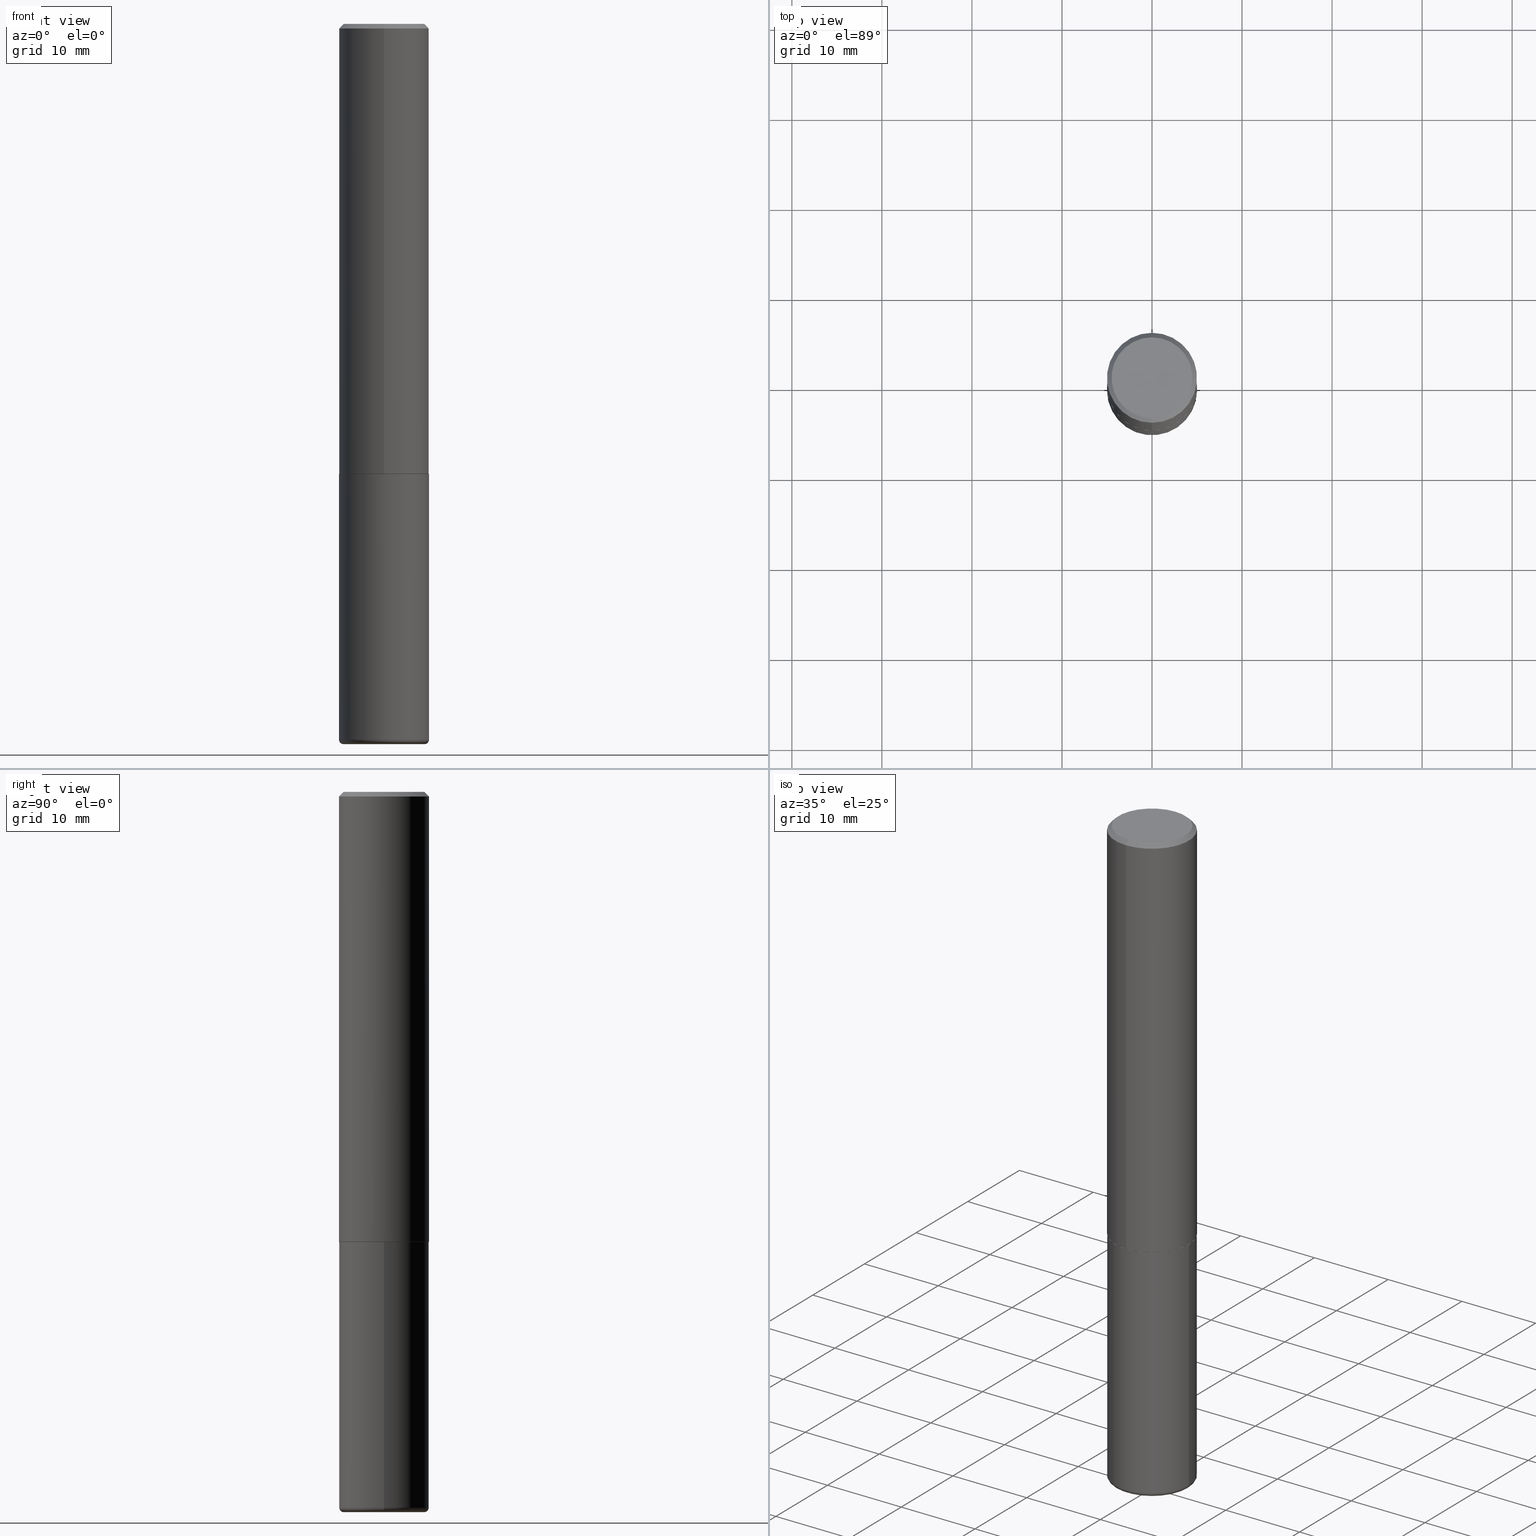
[diagram: canonical four-view strip — front | top / right | iso, engineering-drawing reading convention]
A machine part, canonical four-view strip (front | top / right | iso — engineering-drawing reading convention). The complete STEP part file that produces these views, byte-faithful:
ISO-10303-21;
HEADER;
FILE_DESCRIPTION (( 'STEP AP203' ),
    '1' );
FILE_NAME ('74415.STEP',
    '2024-03-06T15:12:24',
    ( '' ),
    ( '' ),
    'SwSTEP 2.0',
    'SolidWorks 2023',
    '' );
FILE_SCHEMA (( 'CONFIG_CONTROL_DESIGN' ));
ENDSEC;

DATA;
#1 = DIRECTION ( 'NONE',  ( 4.937700262164538576E-15, 0.7071067811865437980, -0.7071067811865511255 ) ) ;
#2 = DIRECTION ( 'NONE',  ( 1.000000000000000000, -6.982962677686266711E-15, 4.876176775795935793E-29 ) ) ;
#3 = DIRECTION ( 'NONE',  ( -6.982962677686265922E-15, -1.000000000000000000, 3.491767699944464940E-15 ) ) ;
#4 = PERSON_AND_ORGANIZATION ( #85, #277 ) ;
#5 = ORIENTED_EDGE ( 'NONE', *, *, #45, .F. ) ;
#6 = DIRECTION ( 'NONE',  ( -6.982962677686265922E-15, -1.000000000000000000, 4.184602492209747448E-15 ) ) ;
#7 = CC_DESIGN_PERSON_AND_ORGANIZATION_ASSIGNMENT ( #216, #124, ( #50 ) ) ;
#8 = DIRECTION ( 'NONE',  ( -6.982962677686266711E-15, -1.000000000000000000, 3.491481338843145583E-15 ) ) ;
#9 = VECTOR ( 'NONE', #130, 39.37007874015748143 ) ;
#10 = DATE_AND_TIME ( #167, #17 ) ;
#11 = DIRECTION ( 'NONE',  ( 6.982962677686265133E-15, 1.000000000000000000, -3.491137977679279029E-15 ) ) ;
#12 = EDGE_CURVE ( 'NONE', #100, #136, #118, .T. ) ;
#13 = CARTESIAN_POINT ( 'NONE',  ( 0.000000000000000000, 0.000000000000000000, 0.000000000000000000 ) ) ;
#14 =( CONVERSION_BASED_UNIT ( 'INCH', #212 ) LENGTH_UNIT ( ) NAMED_UNIT ( #214 ) );
#15 = MANIFOLD_SOLID_BREP ( 'Body-Move/Copy2[1]', #387 ) ;
#16 = VECTOR ( 'NONE', #379, 39.37007874015748854 ) ;
#17 = LOCAL_TIME ( 10, 12, 24.00000000000000000, #324 ) ;
#18 = CC_DESIGN_PERSON_AND_ORGANIZATION_ASSIGNMENT ( #149, #364, ( #315 ) ) ;
#19 = APPLICATION_CONTEXT ( 'configuration controlled 3d designs of mechanical parts and assemblies' ) ;
#20 = CALENDAR_DATE ( 2024, 6, 3 ) ;
#21 = VECTOR ( 'NONE', #109, 39.37007874015748143 ) ;
#22 = ORIENTED_EDGE ( 'NONE', *, *, #222, .T. ) ;
#23 = EDGE_LOOP ( 'NONE', ( #84, #398, #314, #44 ) ) ;
#24 = CIRCLE ( 'NONE', #32, 0.1771500000000000019 ) ;
#25 = VECTOR ( 'NONE', #1, 39.37007874015748854 ) ;
#26 = DIRECTION ( 'NONE',  ( -2.445468806185136597E-29, 3.491481338843145583E-15, 1.000000000000000000 ) ) ;
#27 = EDGE_CURVE ( 'NONE', #190, #381, #357, .T. ) ;
#28 = DIRECTION ( 'NONE',  ( 2.438088387897960049E-29, -3.491481338843145188E-15, -1.000000000000000000 ) ) ;
#29 = UNCERTAINTY_MEASURE_WITH_UNIT (LENGTH_MEASURE( 1.000000000000000082E-05 ), #14, 'distance_accuracy_value', 'NONE');
#30 = CARTESIAN_POINT ( 'NONE',  ( 0.000000000000000000, 0.000000000000000000, 0.000000000000000000 ) ) ;
#31 = CC_DESIGN_PERSON_AND_ORGANIZATION_ASSIGNMENT ( #358, #273, ( #52 ) ) ;
#32 = AXIS2_PLACEMENT_3D ( 'NONE', #331, #46, #268 ) ;
#33 = DIRECTION ( 'NONE',  ( -2.445268841296851437E-29, 3.491767699944464545E-15, 1.000000000000000000 ) ) ;
#34 = CIRCLE ( 'NONE', #288, 0.1968500000000000250 ) ;
#35 = LOCAL_TIME ( 10, 12, 24.00000000000000000, #95 ) ;
#36 = VERTEX_POINT ( 'NONE', #138 ) ;
#37 = PERSON_AND_ORGANIZATION ( #85, #277 ) ;
#38 = FACE_OUTER_BOUND ( 'NONE', #128, .T. ) ;
#39 = DIRECTION ( 'NONE',  ( -2.445268841296851437E-29, 3.491767699944464940E-15, 1.000000000000000000 ) ) ;
#40 =( NAMED_UNIT ( * ) SI_UNIT ( $, .STERADIAN. ) SOLID_ANGLE_UNIT ( ) );
#41 = ORIENTED_EDGE ( 'NONE', *, *, #184, .F. ) ;
#42 = DIRECTION ( 'NONE',  ( -2.445268841296850876E-29, 3.491767699944464940E-15, 1.000000000000000000 ) ) ;
#43 = FACE_OUTER_BOUND ( 'NONE', #23, .T. ) ;
#44 = ORIENTED_EDGE ( 'NONE', *, *, #93, .F. ) ;
#45 = EDGE_CURVE ( 'NONE', #157, #170, #81, .T. ) ;
#46 = DIRECTION ( 'NONE',  ( -2.445468806185136597E-29, 3.491481338843145583E-15, 1.000000000000000000 ) ) ;
#47 = CIRCLE ( 'NONE', #319, 0.1968500000000002470 ) ;
#48 = ORIENTED_EDGE ( 'NONE', *, *, #199, .T. ) ;
#49 =( LENGTH_UNIT ( ) NAMED_UNIT ( * ) SI_UNIT ( $, .METRE. ) );
#50 = SECURITY_CLASSIFICATION ( '', '', #79 ) ;
#51 = APPROVAL_DATE_TIME ( #181, #308 ) ;
#52 = PRODUCT ( '74415', '74415', '', ( #67 ) ) ;
#53 = DIRECTION ( 'NONE',  ( 1.000000000000000000, -6.982962677686271444E-15, 4.883557194083114022E-29 ) ) ;
#54 = DIRECTION ( 'NONE',  ( -2.445468806185136597E-29, 3.491481338843145583E-15, 1.000000000000000000 ) ) ;
#55 = CARTESIAN_POINT ( 'NONE',  ( 1.398703375343782440E-15, 0.1968499999999933914, -1.967500000000000471 ) ) ;
#56 = VERTEX_POINT ( 'NONE', #298 ) ;
#57 = DIRECTION ( 'NONE',  ( -6.982962677686265922E-15, -1.000000000000000000, 4.184602492209747448E-15 ) ) ;
#58 = AXIS2_PLACEMENT_3D ( 'NONE', #242, #401, #2 ) ;
#59 = ORIENTED_EDGE ( 'NONE', *, *, #65, .T. ) ;
#60 = DIRECTION ( 'NONE',  ( -2.445268841296851437E-29, 3.491767699944464545E-15, 1.000000000000000000 ) ) ;
#61 = CIRCLE ( 'NONE', #218, 0.1968500000000002470 ) ;
#62 = CARTESIAN_POINT ( 'NONE',  ( 1.374596203102542200E-15, 0.1968499999999999694, -0.02000000000000072900 ) ) ;
#63 = FACE_OUTER_BOUND ( 'NONE', #259, .T. ) ;
#64 = FACE_OUTER_BOUND ( 'NONE', #359, .T. ) ;
#65 = EDGE_CURVE ( 'NONE', #352, #103, #24, .T. ) ;
#66 = LINE ( 'NONE', #106, #372 ) ;
#67 = MECHANICAL_CONTEXT ( 'NONE', #243, 'mechanical' ) ;
#68 = ORIENTED_EDGE ( 'NONE', *, *, #184, .T. ) ;
#69 = AXIS2_PLACEMENT_3D ( 'NONE', #285, #26, #287 ) ;
#70 = LOCAL_TIME ( 10, 12, 24.00000000000000000, #371 ) ;
#71 = DIRECTION ( 'NONE',  ( 1.000000000000000000, -6.982962677686266711E-15, 4.876176775795935793E-29 ) ) ;
#72 = CC_DESIGN_APPROVAL ( #308, ( #50 ) ) ;
#73 = DIRECTION ( 'NONE',  ( -2.445468806185136597E-29, 3.491481338843145583E-15, 1.000000000000000000 ) ) ;
#74 = DIRECTION ( 'NONE',  ( 7.105427357601001859E-15, 1.000000000000000000, -3.491481338843145583E-15 ) ) ;
#75 = DIRECTION ( 'NONE',  ( 1.000000000000000000, -6.982962677686267499E-15, 0.000000000000000000 ) ) ;
#76 = FACE_OUTER_BOUND ( 'NONE', #280, .T. ) ;
#77 = CALENDAR_DATE ( 2024, 6, 3 ) ;
#78 = ORIENTED_EDGE ( 'NONE', *, *, #132, .T. ) ;
#79 = SECURITY_CLASSIFICATION_LEVEL ( 'unclassified' ) ;
#80 = DESIGN_CONTEXT ( 'detailed design', #19, 'design' ) ;
#81 = CIRCLE ( 'NONE', #134, 0.1768499999999998407 ) ;
#82 = CARTESIAN_POINT ( 'NONE',  ( -1.367613240424807079E-15, -0.1958500000000068797, -1.968499999999999028 ) ) ;
#83 = DIRECTION ( 'NONE',  ( -6.982962677686265922E-15, -1.000000000000000000, 3.491767699944464545E-15 ) ) ;
#84 = ORIENTED_EDGE ( 'NONE', *, *, #262, .T. ) ;
#85 = PERSON ( 'UNSPECIFIED', 'UNSPECIFIED', 'UNSPECIFIED', ('UNSPECIFIED'), ('UNSPECIFIED'), ('UNSPECIFIED') ) ;
#86 = ADVANCED_FACE ( 'NONE', ( #76 ), #370, .T. ) ;
#87 = FACE_OUTER_BOUND ( 'NONE', #228, .T. ) ;
#88 = DIRECTION ( 'NONE',  ( 6.982962677686265133E-15, 1.000000000000000000, -3.491137977679279029E-15 ) ) ;
#89 = AXIS2_PLACEMENT_3D ( 'NONE', #30, #137, #71 ) ;
#90 = ADVANCED_FACE ( 'NONE', ( #64 ), #223, .T. ) ;
#91 = CARTESIAN_POINT ( 'NONE',  ( -0.1771500000000000019, -9.633663617761380556E-15, -3.149600000000000399 ) ) ;
#92 = APPROVAL_STATUS ( 'not_yet_approved' ) ;
#93 = EDGE_CURVE ( 'NONE', #36, #310, #239, .T. ) ;
#94 = CARTESIAN_POINT ( 'NONE',  ( -5.428821863719041386E-45, 7.752188435212310874E-31, 2.220132924459896583E-16 ) ) ;
#95 = COORDINATED_UNIVERSAL_TIME_OFFSET ( 5, 0, .BEHIND. ) ;
#96 = ORIENTED_EDGE ( 'NONE', *, *, #189, .T. ) ;
#97 = FACE_OUTER_BOUND ( 'NONE', #274, .T. ) ;
#98 = AXIS2_PLACEMENT_3D ( 'NONE', #13, #403, #210 ) ;
#99 = DIRECTION ( 'NONE',  ( -2.445268841296851437E-29, 3.491767699944464545E-15, 1.000000000000000000 ) ) ;
#100 = VERTEX_POINT ( 'NONE', #82 ) ;
#101 = VERTEX_POINT ( 'NONE', #121 ) ;
#102 = PLANE ( 'NONE',  #155 ) ;
#103 = VERTEX_POINT ( 'NONE', #91 ) ;
#104 = DIRECTION ( 'NONE',  ( -6.982962677686265922E-15, -1.000000000000000000, 4.184602492209747448E-15 ) ) ;
#105 = DIRECTION ( 'NONE',  ( 1.000000000000000000, -6.982962677686267499E-15, 0.000000000000000000 ) ) ;
#106 = CARTESIAN_POINT ( 'NONE',  ( 1.391597947986204111E-15, 0.1958499999999931407, -1.968500000000000583 ) ) ;
#107 = CARTESIAN_POINT ( 'NONE',  ( 4.813905344975440714E-29, -6.872981015512730918E-15, -1.968499999999999694 ) ) ;
#108 = LINE ( 'NONE', #388, #253 ) ;
#109 = DIRECTION ( 'NONE',  ( -2.445468806185136877E-29, 3.491481338843145188E-15, 1.000000000000000000 ) ) ;
#110 = ORIENTED_EDGE ( 'NONE', *, *, #414, .T. ) ;
#111 = FACE_OUTER_BOUND ( 'NONE', #306, .T. ) ;
#112 = CIRCLE ( 'NONE', #193, 0.1968499999999999694 ) ;
#113 = AXIS2_PLACEMENT_3D ( 'NONE', #115, #374, #294 ) ;
#114 = APPROVAL_DATE_TIME ( #334, #250 ) ;
#115 = CARTESIAN_POINT ( 'NONE',  ( 1.234936949548815012E-15, 0.1768499999999998407, -5.065124715121833152E-16 ) ) ;
#116 = PERSON_AND_ORGANIZATION_ROLE ( 'design_supplier' ) ;
#117 = VERTEX_POINT ( 'NONE', #55 ) ;
#118 = CIRCLE ( 'NONE', #211, 0.1958499999999999963 ) ;
#119 = EDGE_CURVE ( 'NONE', #170, #310, #318, .T. ) ;
#120 = AXIS2_PLACEMENT_3D ( 'NONE', #290, #28, #234 ) ;
#121 = CARTESIAN_POINT ( 'NONE',  ( 1.374596203102542200E-15, 0.1968499999999999694, -0.02000000000000072900 ) ) ;
#122 = AXIS2_PLACEMENT_3D ( 'NONE', #355, #60, #320 ) ;
#123 = EDGE_CURVE ( 'NONE', #190, #56, #340, .T. ) ;
#124 = PERSON_AND_ORGANIZATION_ROLE ( 'classification_officer' ) ;
#125 = CIRCLE ( 'NONE', #361, 0.1768499999999998407 ) ;
#126 = CIRCLE ( 'NONE', #122, 0.1968500000000000527 ) ;
#127 = DIRECTION ( 'NONE',  ( -2.445468806185136597E-29, 3.491481338843145583E-15, 1.000000000000000000 ) ) ;
#128 = EDGE_LOOP ( 'NONE', ( #283, #154, #68, #373 ) ) ;
#129 = DIRECTION ( 'NONE',  ( -2.445268841296851437E-29, 3.491767699944464545E-15, 1.000000000000000000 ) ) ;
#130 = DIRECTION ( 'NONE',  ( -4.937700262164969294E-15, -0.7071067811866054154, 0.7071067811864896191 ) ) ;
#131 = DIRECTION ( 'NONE',  ( -2.445268841296851437E-29, 3.491767699944464545E-15, 1.000000000000000000 ) ) ;
#132 = EDGE_CURVE ( 'NONE', #170, #157, #125, .T. ) ;
#133 = DIRECTION ( 'NONE',  ( -6.982962677686265133E-15, -1.000000000000000000, 3.491137977679279029E-15 ) ) ;
#134 = AXIS2_PLACEMENT_3D ( 'NONE', #166, #363, #3 ) ;
#135 = AXIS2_PLACEMENT_3D ( 'NONE', #165, #300, #6 ) ;
#136 = VERTEX_POINT ( 'NONE', #384 ) ;
#137 = DIRECTION ( 'NONE',  ( -2.445468806185136597E-29, 3.491481338843145583E-15, 1.000000000000000000 ) ) ;
#138 = CARTESIAN_POINT ( 'NONE',  ( -1.374596203102495065E-15, -0.1968500000000071026, -1.967499999999998916 ) ) ;
#139 = ORIENTED_EDGE ( 'NONE', *, *, #27, .T. ) ;
#140 = CARTESIAN_POINT ( 'NONE',  ( 0.000000000000000000, 0.000000000000000000, 0.000000000000000000 ) ) ;
#141 = APPLICATION_PROTOCOL_DEFINITION ( 'international standard', 'config_control_design', 1994, #19 ) ;
#142 = ORIENTED_EDGE ( 'NONE', *, *, #396, .F. ) ;
#143 = AXIS2_PLACEMENT_3D ( 'NONE', #251, #254, #57 ) ;
#144 = DIRECTION ( 'NONE',  ( 1.000000000000000000, -6.982962677686266711E-15, 0.000000000000000000 ) ) ;
#145 = PERSON_AND_ORGANIZATION ( #85, #277 ) ;
#146 = CARTESIAN_POINT ( 'NONE',  ( 0.000000000000000000, 0.000000000000000000, 0.000000000000000000 ) ) ;
#147 = ORIENTED_EDGE ( 'NONE', *, *, #265, .F. ) ;
#148 = EDGE_CURVE ( 'NONE', #56, #190, #112, .T. ) ;
#149 = PERSON_AND_ORGANIZATION ( #85, #277 ) ;
#150 = VECTOR ( 'NONE', #39, 39.37007874015748143 ) ;
#151 = APPROVAL_PERSON_ORGANIZATION ( #37, #250, #399 ) ;
#152 = ADVANCED_FACE ( 'NONE', ( #187 ), #102, .F. ) ;
#153 = MANIFOLD_SOLID_BREP ( 'Body-Move/Copy2[2]', #179 ) ;
#154 = ORIENTED_EDGE ( 'NONE', *, *, #123, .T. ) ;
#155 = AXIS2_PLACEMENT_3D ( 'NONE', #227, #42, #329 ) ;
#156 = AXIS2_PLACEMENT_3D ( 'NONE', #140, #33, #417 ) ;
#157 = VERTEX_POINT ( 'NONE', #416 ) ;
#158 = DIRECTION ( 'NONE',  ( -6.982962677686265922E-15, -1.000000000000000000, 4.163344669033670112E-15 ) ) ;
#159 = ADVANCED_FACE ( 'NONE', ( #169 ), #376, .T. ) ;
#160 = DIRECTION ( 'NONE',  ( 2.438088387897960049E-29, -3.491481338843145188E-15, -1.000000000000000000 ) ) ;
#161 = DIRECTION ( 'NONE',  ( 5.024295867788490741E-15, 0.7071067811866103003, 0.7071067811864847341 ) ) ;
#162 = FACE_OUTER_BOUND ( 'NONE', #378, .T. ) ;
#163 = AXIS2_PLACEMENT_3D ( 'NONE', #219, #54, #53 ) ;
#164 = CC_DESIGN_SECURITY_CLASSIFICATION ( #50, ( #380 ) ) ;
#165 = CARTESIAN_POINT ( 'NONE',  ( 4.813511714092851266E-29, -6.873544717340677315E-15, -1.968499999999999694 ) ) ;
#166 = CARTESIAN_POINT ( 'NONE',  ( -5.428821863719041386E-45, 7.752188435212310874E-31, 2.220132924459896583E-16 ) ) ;
#167 = CALENDAR_DATE ( 2024, 6, 3 ) ;
#168 = ORIENTED_EDGE ( 'NONE', *, *, #199, .F. ) ;
#169 = FACE_OUTER_BOUND ( 'NONE', #247, .T. ) ;
#170 = VERTEX_POINT ( 'NONE', #171 ) ;
#171 = CARTESIAN_POINT ( 'NONE',  ( -1.281884050883609900E-15, -0.1768499999999998407, 8.395324101811677409E-16 ) ) ;
#172 =( NAMED_UNIT ( * ) PLANE_ANGLE_UNIT ( ) SI_UNIT ( $, .RADIAN. ) );
#173 = DIRECTION ( 'NONE',  ( 2.445268841296851437E-29, -3.491767699944464545E-15, -1.000000000000000000 ) ) ;
#174 = ORIENTED_EDGE ( 'NONE', *, *, #377, .F. ) ;
#175 = CYLINDRICAL_SURFACE ( 'NONE', #225, 0.1968500000000001360 ) ;
#176 = ORIENTED_EDGE ( 'NONE', *, *, #375, .F. ) ;
#177 = CALENDAR_DATE ( 2024, 6, 3 ) ;
#178 = CARTESIAN_POINT ( 'NONE',  ( 4.890537682593712927E-31, -6.983535399888942699E-17, -0.02000000000000004205 ) ) ;
#179 = CLOSED_SHELL ( 'NONE', ( #159, #415, #302, #86, #246, #282, #152, #236 ) ) ;
#180 = AXIS2_PLACEMENT_3D ( 'NONE', #382, #129, #104 ) ;
#181 = DATE_AND_TIME ( #177, #35 ) ;
#182 = CARTESIAN_POINT ( 'NONE',  ( 0.1968500000000000250, -8.247577218615273316E-15, -1.968499999999999694 ) ) ;
#183 = EDGE_CURVE ( 'NONE', #117, #101, #301, .T. ) ;
#184 = EDGE_CURVE ( 'NONE', #56, #325, #108, .T. ) ;
#185 = APPROVAL_ROLE ( '' ) ;
#186 = DIRECTION ( 'NONE',  ( -2.445268841296851437E-29, 3.491767699944464545E-15, 1.000000000000000000 ) ) ;
#187 = FACE_OUTER_BOUND ( 'NONE', #391, .T. ) ;
#188 =( GEOMETRIC_REPRESENTATION_CONTEXT ( 3 ) GLOBAL_UNCERTAINTY_ASSIGNED_CONTEXT ( ( #29 ) ) GLOBAL_UNIT_ASSIGNED_CONTEXT ( ( #14, #172, #40 ) ) REPRESENTATION_CONTEXT ( 'NONE', 'WORKASPACE' ) );
#189 = EDGE_CURVE ( 'NONE', #136, #117, #66, .T. ) ;
#190 = VERTEX_POINT ( 'NONE', #233 ) ;
#191 = DIRECTION ( 'NONE',  ( 1.000000000000000000, -6.982962677686269866E-15, 0.000000000000000000 ) ) ;
#192 = ORIENTED_EDGE ( 'NONE', *, *, #119, .T. ) ;
#193 = AXIS2_PLACEMENT_3D ( 'NONE', #351, #221, #191 ) ;
#194 = CIRCLE ( 'NONE', #248, 0.1968500000000000527 ) ;
#195 = CARTESIAN_POINT ( 'NONE',  ( -1.350489030861325626E-15, -0.1968500000000001082, -0.01999999999999935510 ) ) ;
#196 = CARTESIAN_POINT ( 'NONE',  ( 0.1771500000000000019, -1.216501928079728352E-14, -3.129900000000000571 ) ) ;
#197 = COORDINATED_UNIVERSAL_TIME_OFFSET ( 5, 0, .BEHIND. ) ;
#198 = CC_DESIGN_APPROVAL ( #383, ( #380 ) ) ;
#199 = EDGE_CURVE ( 'NONE', #352, #56, #270, .T. ) ;
#200 = APPROVAL_PERSON_ORGANIZATION ( #275, #383, #237 ) ;
#201 = LOCAL_TIME ( 10, 12, 24.00000000000000000, #345 ) ;
#202 = DIRECTION ( 'NONE',  ( -2.445268841296851437E-29, 3.491767699944464545E-15, 1.000000000000000000 ) ) ;
#203 = DIRECTION ( 'NONE',  ( -6.982962677686265922E-15, -1.000000000000000000, 4.184602492209747448E-15 ) ) ;
#204 = ORIENTED_EDGE ( 'NONE', *, *, #12, .T. ) ;
#205 = CYLINDRICAL_SURFACE ( 'NONE', #58, 0.1968499999999999694 ) ;
#206 = CC_DESIGN_PERSON_AND_ORGANIZATION_ASSIGNMENT ( #4, #402, ( #380 ) ) ;
#207 = DATE_TIME_ROLE ( 'creation_date' ) ;
#208 = ORIENTED_EDGE ( 'NONE', *, *, #377, .T. ) ;
#209 = CARTESIAN_POINT ( 'NONE',  ( -0.1968499999999999694, 1.398703375343756999E-15, -9.682923725166782276E-30 ) ) ;
#210 = DIRECTION ( 'NONE',  ( 1.000000000000000000, 0.000000000000000000, 0.000000000000000000 ) ) ;
#211 = AXIS2_PLACEMENT_3D ( 'NONE', #244, #393, #203 ) ;
#212 = LENGTH_MEASURE_WITH_UNIT ( LENGTH_MEASURE( 0.02539999999999999897 ), #49 );
#213 = ORIENTED_EDGE ( 'NONE', *, *, #183, .F. ) ;
#214 = DIMENSIONAL_EXPONENTS ( 1.000000000000000000, 0.000000000000000000, 0.000000000000000000, 0.000000000000000000, 0.000000000000000000, 0.000000000000000000, 0.000000000000000000 ) ;
#215 = CYLINDRICAL_SURFACE ( 'NONE', #156, 0.1968500000000001360 ) ;
#216 = PERSON_AND_ORGANIZATION ( #85, #277 ) ;
#217 = CARTESIAN_POINT ( 'NONE',  ( -1.350489030861325626E-15, -0.1968500000000001082, -0.01999999999999935510 ) ) ;
#218 = AXIS2_PLACEMENT_3D ( 'NONE', #292, #131, #356 ) ;
#219 = CARTESIAN_POINT ( 'NONE',  ( 7.654072816478859974E-29, -1.092798744244516270E-14, -3.129900000000000571 ) ) ;
#220 = ORIENTED_EDGE ( 'NONE', *, *, #189, .F. ) ;
#221 = DIRECTION ( 'NONE',  ( -2.445468806185136597E-29, 3.491481338843145583E-15, 1.000000000000000000 ) ) ;
#222 = EDGE_CURVE ( 'NONE', #325, #381, #34, .T. ) ;
#223 = TOROIDAL_SURFACE ( 'NONE', #276, 0.1771500000000000019, 0.01969999999999987733 ) ;
#224 = ORIENTED_EDGE ( 'NONE', *, *, #12, .F. ) ;
#225 = AXIS2_PLACEMENT_3D ( 'NONE', #146, #305, #83 ) ;
#226 = ORIENTED_EDGE ( 'NONE', *, *, #148, .F. ) ;
#227 = CARTESIAN_POINT ( 'NONE',  ( 4.813511714092851266E-29, -6.873544717340677315E-15, -1.968499999999999694 ) ) ;
#228 = EDGE_LOOP ( 'NONE', ( #213, #346, #255, #142 ) ) ;
#229 = CARTESIAN_POINT ( 'NONE',  ( -0.1968500000000000250, -7.501780853635190206E-15, -1.968499999999999694 ) ) ;
#230 = ADVANCED_FACE ( 'NONE', ( #38 ), #205, .T. ) ;
#231 = AXIS2_PLACEMENT_3D ( 'NONE', #232, #74, #397 ) ;
#232 = CARTESIAN_POINT ( 'NONE',  ( -0.1771500000000000019, -9.669260986046144223E-15, -3.129900000000000571 ) ) ;
#233 = CARTESIAN_POINT ( 'NONE',  ( -0.1968499999999999417, -9.529284067101404126E-15, -3.129900000000000571 ) ) ;
#234 = DIRECTION ( 'NONE',  ( -1.000000000000000000, 6.982962677686265922E-15, -4.876176775795935793E-29 ) ) ;
#235 = PRODUCT_RELATED_PRODUCT_CATEGORY ( 'detail', '', ( #52 ) ) ;
#236 = ADVANCED_FACE ( 'NONE', ( #264 ), #360, .F. ) ;
#237 = APPROVAL_ROLE ( '' ) ;
#238 = ORIENTED_EDGE ( 'NONE', *, *, #132, .F. ) ;
#239 = LINE ( 'NONE', #326, #150 ) ;
#240 = CC_DESIGN_APPROVAL ( #250, ( #315 ) ) ;
#241 = CALENDAR_DATE ( 2024, 6, 3 ) ;
#242 = CARTESIAN_POINT ( 'NONE',  ( 0.000000000000000000, 0.000000000000000000, 0.000000000000000000 ) ) ;
#243 = APPLICATION_CONTEXT ( 'configuration controlled 3d designs of mechanical parts and assemblies' ) ;
#244 = CARTESIAN_POINT ( 'NONE',  ( 4.813511714092851266E-29, -6.873544717340677315E-15, -1.968499999999999694 ) ) ;
#245 = APPLICATION_PROTOCOL_DEFINITION ( 'international standard', 'config_control_design', 1994, #243 ) ;
#246 = ADVANCED_FACE ( 'NONE', ( #87 ), #215, .T. ) ;
#247 = EDGE_LOOP ( 'NONE', ( #204, #96, #328, #176 ) ) ;
#248 = AXIS2_PLACEMENT_3D ( 'NONE', #279, #186, #133 ) ;
#249 = ADVANCED_BREP_SHAPE_REPRESENTATION ( '74415', ( #15, #153, #98 ), #188 ) ;
#250 = APPROVAL ( #367, 'UNSPECIFIED' ) ;
#251 = CARTESIAN_POINT ( 'NONE',  ( 4.813511714092851266E-29, -6.873544717340677315E-15, -1.968499999999999694 ) ) ;
#252 = PERSON_AND_ORGANIZATION ( #85, #277 ) ;
#253 = VECTOR ( 'NONE', #392, 39.37007874015748143 ) ;
#254 = DIRECTION ( 'NONE',  ( -2.445268841296851437E-29, 3.491767699944464545E-15, 1.000000000000000000 ) ) ;
#255 = ORIENTED_EDGE ( 'NONE', *, *, #93, .T. ) ;
#256 = DIRECTION ( 'NONE',  ( 2.445268841296851437E-29, -3.491767699944464545E-15, -1.000000000000000000 ) ) ;
#257 = DIRECTION ( 'NONE',  ( -6.982962677686265922E-15, -1.000000000000000000, 3.491767699944464940E-15 ) ) ;
#258 = AXIS2_PLACEMENT_3D ( 'NONE', #196, #8, #144 ) ;
#259 = EDGE_LOOP ( 'NONE', ( #336, #139, #316, #41 ) ) ;
#260 = CARTESIAN_POINT ( 'NONE',  ( -1.367613240424807079E-15, -0.1958500000000068797, -1.968499999999999028 ) ) ;
#261 = ORIENTED_EDGE ( 'NONE', *, *, #45, .T. ) ;
#262 = EDGE_CURVE ( 'NONE', #36, #117, #47, .T. ) ;
#263 = CARTESIAN_POINT ( 'NONE',  ( 4.813905344975440714E-29, -6.872981015512730918E-15, -1.968499999999999694 ) ) ;
#264 = FACE_OUTER_BOUND ( 'NONE', #269, .T. ) ;
#265 = EDGE_CURVE ( 'NONE', #117, #36, #61, .T. ) ;
#266 = DIRECTION ( 'NONE',  ( -1.000000000000000000, 6.982962677686265922E-15, -4.876176775795935793E-29 ) ) ;
#267 = EDGE_LOOP ( 'NONE', ( #22, #365 ) ) ;
#268 = DIRECTION ( 'NONE',  ( 1.000000000000000000, -6.982962677686261189E-15, 0.000000000000000000 ) ) ;
#269 = EDGE_LOOP ( 'NONE', ( #261, #78 ) ) ;
#270 = CIRCLE ( 'NONE', #258, 0.01969999999999989468 ) ;
#271 = ORIENTED_EDGE ( 'NONE', *, *, #119, .F. ) ;
#272 = CARTESIAN_POINT ( 'NONE',  ( 4.813905344975440714E-29, -6.872981015512730918E-15, -1.968499999999999694 ) ) ;
#273 = PERSON_AND_ORGANIZATION_ROLE ( 'design_owner' ) ;
#274 = EDGE_LOOP ( 'NONE', ( #400, #412, #48, #353 ) ) ;
#275 = PERSON_AND_ORGANIZATION ( #85, #277 ) ;
#276 = AXIS2_PLACEMENT_3D ( 'NONE', #362, #73, #322 ) ;
#277 = ORGANIZATION ( 'UNSPECIFIED', 'UNSPECIFIED', '' ) ;
#278 = ADVANCED_FACE ( 'NONE', ( #63 ), #321, .T. ) ;
#279 = CARTESIAN_POINT ( 'NONE',  ( 4.890537682593712927E-31, -6.983535399888942699E-17, -0.02000000000000004205 ) ) ;
#280 = EDGE_LOOP ( 'NONE', ( #271, #5, #289, #404 ) ) ;
#281 = CIRCLE ( 'NONE', #349, 0.1771500000000000019 ) ;
#282 = ADVANCED_FACE ( 'NONE', ( #111 ), #295, .T. ) ;
#283 = ORIENTED_EDGE ( 'NONE', *, *, #27, .F. ) ;
#284 = FACE_OUTER_BOUND ( 'NONE', #304, .T. ) ;
#285 = CARTESIAN_POINT ( 'NONE',  ( 7.654072816478859974E-29, -1.092798744244516270E-14, -3.129900000000000571 ) ) ;
#286 = LINE ( 'NONE', #62, #25 ) ;
#287 = DIRECTION ( 'NONE',  ( 1.000000000000000000, -6.982962677686269866E-15, 0.000000000000000000 ) ) ;
#288 = AXIS2_PLACEMENT_3D ( 'NONE', #272, #323, #75 ) ;
#289 = ORIENTED_EDGE ( 'NONE', *, *, #335, .T. ) ;
#290 = CARTESIAN_POINT ( 'NONE',  ( 7.702248551960706711E-29, -1.099676962482037231E-14, -3.149600000000000399 ) ) ;
#291 = FACE_OUTER_BOUND ( 'NONE', #267, .T. ) ;
#292 = CARTESIAN_POINT ( 'NONE',  ( 4.811066445251554069E-29, -6.870052949640732965E-15, -1.967499999999999805 ) ) ;
#293 = LINE ( 'NONE', #260, #9 ) ;
#294 = DIRECTION ( 'NONE',  ( 6.982962677686265922E-15, 1.000000000000000000, -3.491767699944464940E-15 ) ) ;
#295 = CONICAL_SURFACE ( 'NONE', #143, 0.1958499999999999963, 0.7853981633975336552 ) ;
#296 = CARTESIAN_POINT ( 'NONE',  ( 7.702248551960706711E-29, -1.099676962482037231E-14, -3.149600000000000399 ) ) ;
#297 = CARTESIAN_POINT ( 'NONE',  ( 1.398703375343757985E-15, 0.1968500000000001360, -6.873544717340683232E-16 ) ) ;
#298 = CARTESIAN_POINT ( 'NONE',  ( 0.1968499999999999417, -1.230258364554770273E-14, -3.129900000000000571 ) ) ;
#299 = APPROVAL_DATE_TIME ( #10, #383 ) ;
#300 = DIRECTION ( 'NONE',  ( -2.445268841296851437E-29, 3.491767699944464545E-15, 1.000000000000000000 ) ) ;
#301 = LINE ( 'NONE', #297, #312 ) ;
#302 = ADVANCED_FACE ( 'NONE', ( #284 ), #418, .T. ) ;
#303 = TOROIDAL_SURFACE ( 'NONE', #163, 0.1771500000000000019, 0.01969999999999987733 ) ;
#304 = EDGE_LOOP ( 'NONE', ( #238, #192, #385, #344 ) ) ;
#305 = DIRECTION ( 'NONE',  ( -2.445268841296851437E-29, 3.491767699944464545E-15, 1.000000000000000000 ) ) ;
#306 = EDGE_LOOP ( 'NONE', ( #220, #208, #330, #147 ) ) ;
#307 = LOCAL_TIME ( 10, 12, 24.00000000000000000, #197 ) ;
#308 = APPROVAL ( #92, 'UNSPECIFIED' ) ;
#309 = ADVANCED_FACE ( 'NONE', ( #97 ), #303, .T. ) ;
#310 = VERTEX_POINT ( 'NONE', #217 ) ;
#311 = DATE_TIME_ROLE ( 'classification_date' ) ;
#312 = VECTOR ( 'NONE', #394, 39.37007874015748143 ) ;
#313 = PRODUCT_DEFINITION_SHAPE ( 'NONE', 'NONE',  #315 ) ;
#314 = ORIENTED_EDGE ( 'NONE', *, *, #327, .F. ) ;
#315 = PRODUCT_DEFINITION ( 'UNKNOWN', '', #380, #80 ) ;
#316 = ORIENTED_EDGE ( 'NONE', *, *, #222, .F. ) ;
#317 = CARTESIAN_POINT ( 'NONE',  ( 0.1771500000000000019, -1.223380146317249313E-14, -3.149600000000000399 ) ) ;
#318 = LINE ( 'NONE', #195, #16 ) ;
#319 = AXIS2_PLACEMENT_3D ( 'NONE', #338, #202, #158 ) ;
#320 = DIRECTION ( 'NONE',  ( -6.982962677686265133E-15, -1.000000000000000000, 3.491137977679279029E-15 ) ) ;
#321 = CYLINDRICAL_SURFACE ( 'NONE', #89, 0.1968499999999999694 ) ;
#322 = DIRECTION ( 'NONE',  ( 1.000000000000000000, -6.982962677686271444E-15, 4.883557194083114022E-29 ) ) ;
#323 = DIRECTION ( 'NONE',  ( -2.445468806185136597E-29, 3.491481338843145583E-15, 1.000000000000000000 ) ) ;
#324 = COORDINATED_UNIVERSAL_TIME_OFFSET ( 5, 0, .BEHIND. ) ;
#325 = VERTEX_POINT ( 'NONE', #182 ) ;
#326 = CARTESIAN_POINT ( 'NONE',  ( -1.374596203102542397E-15, -0.1968500000000001360, 6.873544717340683232E-16 ) ) ;
#327 = EDGE_CURVE ( 'NONE', #310, #101, #194, .T. ) ;
#328 = ORIENTED_EDGE ( 'NONE', *, *, #262, .F. ) ;
#329 = DIRECTION ( 'NONE',  ( -6.982962677686265922E-15, -1.000000000000000000, 3.491767699944464940E-15 ) ) ;
#330 = ORIENTED_EDGE ( 'NONE', *, *, #375, .T. ) ;
#331 = CARTESIAN_POINT ( 'NONE',  ( 7.702248551960706711E-29, -1.099676962482037231E-14, -3.149600000000000399 ) ) ;
#332 = DATE_AND_TIME ( #77, #307 ) ;
#333 = AXIS2_PLACEMENT_3D ( 'NONE', #178, #256, #88 ) ;
#334 = DATE_AND_TIME ( #241, #70 ) ;
#335 = EDGE_CURVE ( 'NONE', #157, #101, #286, .T. ) ;
#336 = ORIENTED_EDGE ( 'NONE', *, *, #148, .T. ) ;
#337 = DATE_AND_TIME ( #20, #201 ) ;
#338 = CARTESIAN_POINT ( 'NONE',  ( 4.811066445251554069E-29, -6.870052949640732965E-15, -1.967499999999999805 ) ) ;
#339 = CC_DESIGN_PERSON_AND_ORGANIZATION_ASSIGNMENT ( #145, #116, ( #380 ) ) ;
#340 = CIRCLE ( 'NONE', #69, 0.1968499999999999694 ) ;
#341 = CIRCLE ( 'NONE', #180, 0.1958499999999999963 ) ;
#342 = ADVANCED_FACE ( 'NONE', ( #162 ), #390, .T. ) ;
#343 = ADVANCED_FACE ( 'NONE', ( #291 ), #410, .F. ) ;
#344 = ORIENTED_EDGE ( 'NONE', *, *, #335, .F. ) ;
#345 = COORDINATED_UNIVERSAL_TIME_OFFSET ( 5, 0, .BEHIND. ) ;
#346 = ORIENTED_EDGE ( 'NONE', *, *, #265, .T. ) ;
#347 = SHAPE_DEFINITION_REPRESENTATION ( #313, #249 ) ;
#348 = AXIS2_PLACEMENT_3D ( 'NONE', #395, #173, #11 ) ;
#349 = AXIS2_PLACEMENT_3D ( 'NONE', #296, #127, #413 ) ;
#350 = APPROVAL_PERSON_ORGANIZATION ( #252, #308, #185 ) ;
#351 = CARTESIAN_POINT ( 'NONE',  ( 7.654072816478859974E-29, -1.092798744244516270E-14, -3.129900000000000571 ) ) ;
#352 = VERTEX_POINT ( 'NONE', #317 ) ;
#353 = ORIENTED_EDGE ( 'NONE', *, *, #123, .F. ) ;
#354 = CC_DESIGN_DATE_AND_TIME_ASSIGNMENT ( #337, #311, ( #50 ) ) ;
#355 = CARTESIAN_POINT ( 'NONE',  ( 4.890537682593712927E-31, -6.983535399888942699E-17, -0.02000000000000004205 ) ) ;
#356 = DIRECTION ( 'NONE',  ( -6.982962677686265922E-15, -1.000000000000000000, 4.163344669033670112E-15 ) ) ;
#357 = LINE ( 'NONE', #209, #21 ) ;
#358 = PERSON_AND_ORGANIZATION ( #85, #277 ) ;
#359 = EDGE_LOOP ( 'NONE', ( #59, #110, #226, #168 ) ) ;
#360 = PLANE ( 'NONE',  #113 ) ;
#361 = AXIS2_PLACEMENT_3D ( 'NONE', #94, #99, #257 ) ;
#362 = CARTESIAN_POINT ( 'NONE',  ( 7.654072816478859974E-29, -1.092798744244516270E-14, -3.129900000000000571 ) ) ;
#363 = DIRECTION ( 'NONE',  ( -2.445268841296851437E-29, 3.491767699944464545E-15, 1.000000000000000000 ) ) ;
#364 = PERSON_AND_ORGANIZATION_ROLE ( 'creator' ) ;
#365 = ORIENTED_EDGE ( 'NONE', *, *, #409, .T. ) ;
#366 = CC_DESIGN_DATE_AND_TIME_ASSIGNMENT ( #332, #207, ( #315 ) ) ;
#367 = APPROVAL_STATUS ( 'not_yet_approved' ) ;
#368 = ORIENTED_EDGE ( 'NONE', *, *, #65, .F. ) ;
#369 = EDGE_CURVE ( 'NONE', #103, #352, #281, .T. ) ;
#370 = CONICAL_SURFACE ( 'NONE', #348, 0.1968500000000000527, 0.7853981633974466137 ) ;
#371 = COORDINATED_UNIVERSAL_TIME_OFFSET ( 5, 0, .BEHIND. ) ;
#372 = VECTOR ( 'NONE', #161, 39.37007874015748143 ) ;
#373 = ORIENTED_EDGE ( 'NONE', *, *, #409, .F. ) ;
#374 = DIRECTION ( 'NONE',  ( 2.445268841296850876E-29, -3.491767699944464940E-15, -1.000000000000000000 ) ) ;
#375 = EDGE_CURVE ( 'NONE', #100, #36, #293, .T. ) ;
#376 = CONICAL_SURFACE ( 'NONE', #135, 0.1958499999999999963, 0.7853981633975336552 ) ;
#377 = EDGE_CURVE ( 'NONE', #136, #100, #341, .T. ) ;
#378 = EDGE_LOOP ( 'NONE', ( #368, #408 ) ) ;
#379 = DIRECTION ( 'NONE',  ( -4.851104656540954809E-15, -0.7071067811865486830, -0.7071067811865462405 ) ) ;
#380 = PRODUCT_DEFINITION_FORMATION_WITH_SPECIFIED_SOURCE ( 'ANY', '', #52, .NOT_KNOWN. ) ;
#381 = VERTEX_POINT ( 'NONE', #229 ) ;
#382 = CARTESIAN_POINT ( 'NONE',  ( 4.813511714092851266E-29, -6.873544717340677315E-15, -1.968499999999999694 ) ) ;
#383 = APPROVAL ( #405, 'UNSPECIFIED' ) ;
#384 = CARTESIAN_POINT ( 'NONE',  ( 1.395150661665005404E-15, 0.1958499999999931407, -1.968500000000000583 ) ) ;
#385 = ORIENTED_EDGE ( 'NONE', *, *, #327, .T. ) ;
#386 = DIRECTION ( 'NONE',  ( -2.445468806185136597E-29, 3.491481338843145583E-15, 1.000000000000000000 ) ) ;
#387 = CLOSED_SHELL ( 'NONE', ( #278, #90, #343, #230, #309, #342 ) ) ;
#388 = CARTESIAN_POINT ( 'NONE',  ( 0.1968499999999999694, -1.374596203102541411E-15, 9.598753983154298056E-30 ) ) ;
#389 = AXIS2_PLACEMENT_3D ( 'NONE', #107, #160, #266 ) ;
#390 = PLANE ( 'NONE',  #120 ) ;
#391 = EDGE_LOOP ( 'NONE', ( #224, #174 ) ) ;
#392 = DIRECTION ( 'NONE',  ( -2.445468806185136877E-29, 3.491481338843145188E-15, 1.000000000000000000 ) ) ;
#393 = DIRECTION ( 'NONE',  ( -2.445268841296851437E-29, 3.491767699944464545E-15, 1.000000000000000000 ) ) ;
#394 = DIRECTION ( 'NONE',  ( -2.445268841296851437E-29, 3.491767699944464940E-15, 1.000000000000000000 ) ) ;
#395 = CARTESIAN_POINT ( 'NONE',  ( 4.890537682593712927E-31, -6.983535399888942699E-17, -0.02000000000000004205 ) ) ;
#396 = EDGE_CURVE ( 'NONE', #101, #310, #126, .T. ) ;
#397 = DIRECTION ( 'NONE',  ( -1.000000000000000000, 7.105427357600965571E-15, 0.000000000000000000 ) ) ;
#398 = ORIENTED_EDGE ( 'NONE', *, *, #183, .T. ) ;
#399 = APPROVAL_ROLE ( '' ) ;
#400 = ORIENTED_EDGE ( 'NONE', *, *, #414, .F. ) ;
#401 = DIRECTION ( 'NONE',  ( -2.445468806185136597E-29, 3.491481338843145583E-15, 1.000000000000000000 ) ) ;
#402 = PERSON_AND_ORGANIZATION_ROLE ( 'creator' ) ;
#403 = DIRECTION ( 'NONE',  ( 0.000000000000000000, 0.000000000000000000, 1.000000000000000000 ) ) ;
#404 = ORIENTED_EDGE ( 'NONE', *, *, #396, .T. ) ;
#405 = APPROVAL_STATUS ( 'not_yet_approved' ) ;
#406 = CIRCLE ( 'NONE', #407, 0.1968500000000000250 ) ;
#407 = AXIS2_PLACEMENT_3D ( 'NONE', #263, #386, #105 ) ;
#408 = ORIENTED_EDGE ( 'NONE', *, *, #369, .F. ) ;
#409 = EDGE_CURVE ( 'NONE', #381, #325, #406, .T. ) ;
#410 = PLANE ( 'NONE',  #389 ) ;
#411 = CIRCLE ( 'NONE', #231, 0.01969999999999989468 ) ;
#412 = ORIENTED_EDGE ( 'NONE', *, *, #369, .T. ) ;
#413 = DIRECTION ( 'NONE',  ( 1.000000000000000000, -6.982962677686261189E-15, 0.000000000000000000 ) ) ;
#414 = EDGE_CURVE ( 'NONE', #103, #190, #411, .T. ) ;
#415 = ADVANCED_FACE ( 'NONE', ( #43 ), #175, .T. ) ;
#416 = CARTESIAN_POINT ( 'NONE',  ( 1.304766576325678705E-15, 0.1768499999999998407, -3.955058252891884244E-16 ) ) ;
#417 = DIRECTION ( 'NONE',  ( -6.982962677686265922E-15, -1.000000000000000000, 3.491767699944464545E-15 ) ) ;
#418 = CONICAL_SURFACE ( 'NONE', #333, 0.1968500000000000527, 0.7853981633974466137 ) ;
ENDSEC;
END-ISO-10303-21;
